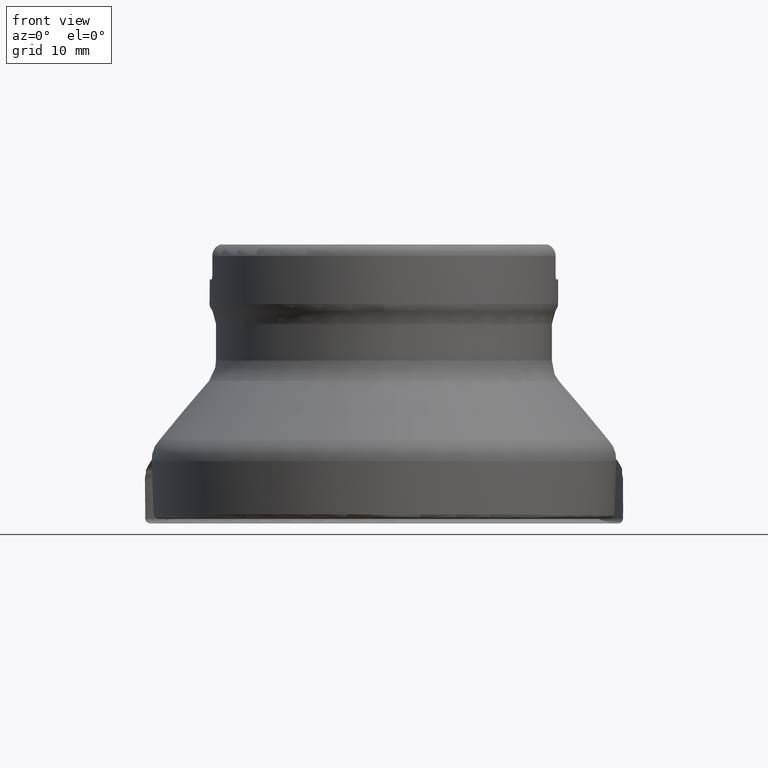
[diagram: clean part render]
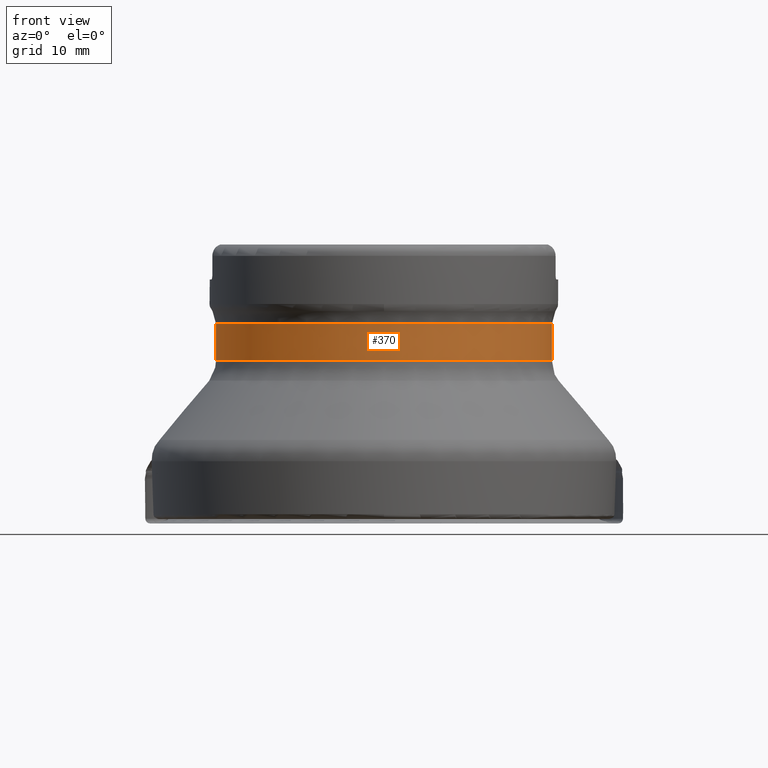
[diagram: same view with one face highlighted and labeled with its STEP entity id]
A machine part, front view. The second image highlights one B-rep face of the part: STEP entity #370.
In plain terms, the highlighted cylindrical surface (bore or boss wall) has radius 26.8 mm, axis along (0, -0, -1).
Its self-contained STEP definition (entity closure, byte-faithful):
#159=CYLINDRICAL_SURFACE('',#1221,26.8);
#170=FACE_BOUND('',#484,.T.);
#171=FACE_BOUND('',#485,.T.);
#370=ADVANCED_FACE('',(#170,#171),#159,.T.);
#484=EDGE_LOOP('',(#724));
#485=EDGE_LOOP('',(#725));
#615=CIRCLE('',#1219,26.8);
#616=CIRCLE('',#1220,26.8);
#724=ORIENTED_EDGE('',*,*,#1049,.T.);
#725=ORIENTED_EDGE('',*,*,#1050,.T.);
#942=VERTEX_POINT('',#2065);
#943=VERTEX_POINT('',#2067);
#1049=EDGE_CURVE('',#942,#942,#615,.T.);
#1050=EDGE_CURVE('',#943,#943,#616,.T.);
#1219=AXIS2_PLACEMENT_3D('',#2064,#1380,#1381);
#1220=AXIS2_PLACEMENT_3D('',#2066,#1382,#1383);
#1221=AXIS2_PLACEMENT_3D('',#2068,#1384,#1385);
#1380=DIRECTION('',(0.,1.17145536458252E-15,1.));
#1381=DIRECTION('',(0.,1.,-1.16511278237248E-15));
#1382=DIRECTION('',(0.,-1.17145536458252E-15,-1.));
#1383=DIRECTION('',(0.,1.,-1.29456975819165E-15));
#1384=DIRECTION('',(0.,-1.17145536458252E-15,-1.));
#1385=DIRECTION('',(0.,1.,-1.17145536458252E-15));
#2064=CARTESIAN_POINT('',(0.,3.04222871910564E-14,25.9696511799219));
#2065=CARTESIAN_POINT('',(0.,26.8,25.9696511799218));
#2066=CARTESIAN_POINT('',(0.,3.72711989706391E-14,31.8161494645778));
#2067=CARTESIAN_POINT('',(0.,26.8,31.8161494645778));
#2068=CARTESIAN_POINT('',(0.,0.,0.));